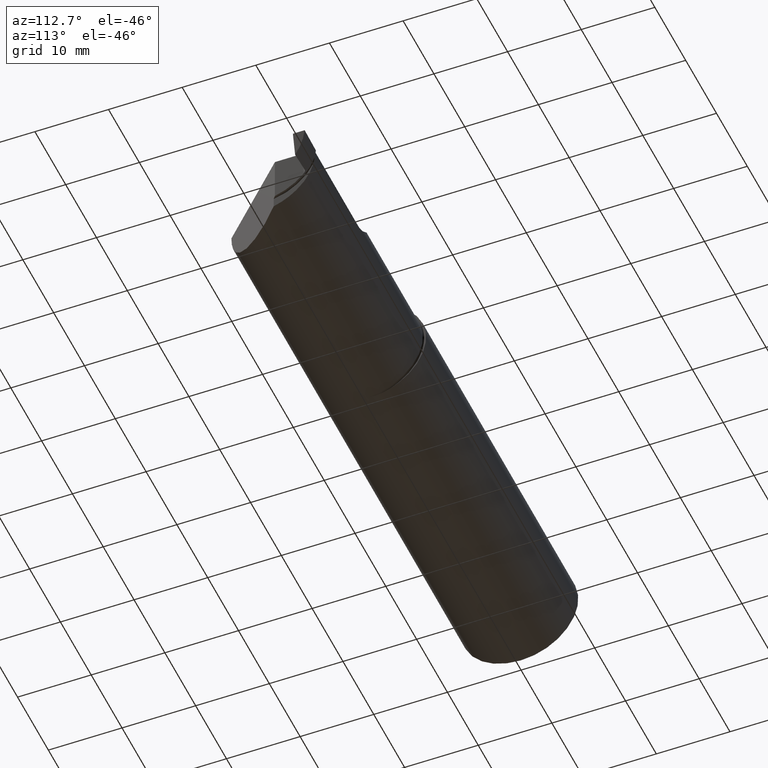
[diagram: clean part render]
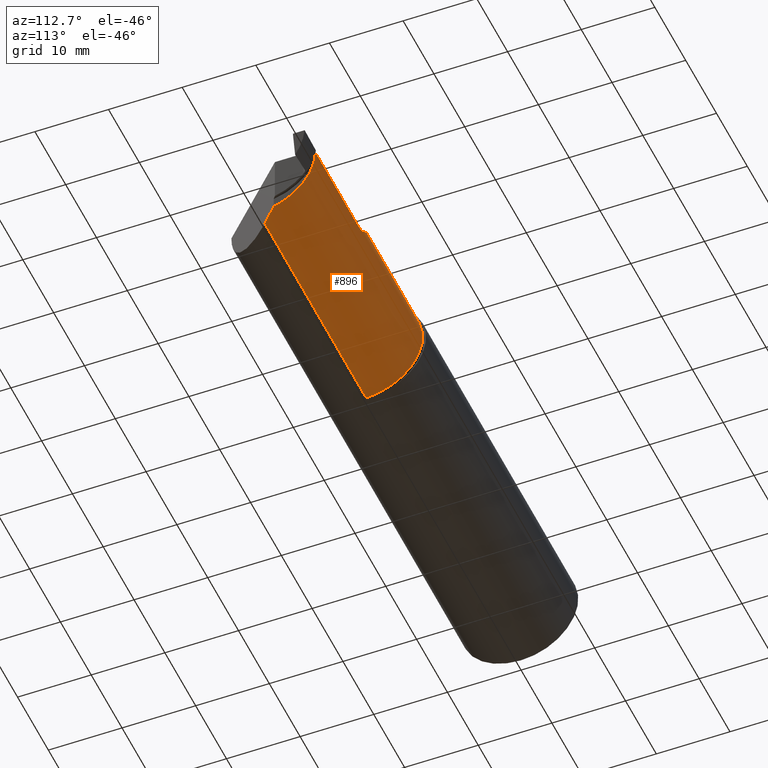
[diagram: same view with one face highlighted and labeled with its STEP entity id]
A machine part, auxiliary view. The second image highlights one B-rep face of the part: STEP entity #896.
In plain terms, the highlighted cylindrical surface (partial cylindrical patch) has radius 7.9375 mm, axis along (-1, -0, -0).
Its self-contained STEP definition (entity closure, byte-faithful):
#14 = CARTESIAN_POINT ( 'NONE',  ( 3.341999999999999638, 0.2973492383597809430, 0.000000000000000000 ) ) ;
#23 = ORIENTED_EDGE ( 'NONE', *, *, #881, .T. ) ;
#28 = CARTESIAN_POINT ( 'NONE',  ( 1.960000000000000409, 0.07781981166122950433, 0.2983500000000000041 ) ) ;
#42 =( BOUNDED_CURVE ( )  B_SPLINE_CURVE ( 3, ( #456, #663, #307, #122 ),
 .UNSPECIFIED., .F., .T. ) 
 B_SPLINE_CURVE_WITH_KNOTS ( ( 4, 4 ),
 ( 4.829815950483568265, 5.981106177898001697 ),
 .UNSPECIFIED. ) 
 CURVE ( )  GEOMETRIC_REPRESENTATION_ITEM ( )  RATIONAL_B_SPLINE_CURVE ( ( 1.000000000000000000, 0.8925608616953477625, 0.8925608616953477625, 1.000000000000000000 ) ) 
 REPRESENTATION_ITEM ( '' )  );
#53 = VERTEX_POINT ( 'NONE', #346 ) ;
#56 = DIRECTION ( 'NONE',  ( 0.000000000000000000, 0.000000000000000000, 1.000000000000000000 ) ) ;
#64 = CARTESIAN_POINT ( 'NONE',  ( 3.341999999999999638, 0.1963737778918792642, -0.2300296049984300595 ) ) ;
#79 = CARTESIAN_POINT ( 'NONE',  ( 2.711388347648312713, 0.2951971671624064042, 0.03661165235168226811 ) ) ;
#81 = ORIENTED_EDGE ( 'NONE', *, *, #852, .T. ) ;
#98 = DIRECTION ( 'NONE',  ( 0.000000000000000000, 0.000000000000000000, 1.000000000000000000 ) ) ;
#103 = VECTOR ( 'NONE', #774, 39.37007874015748143 ) ;
#107 = CARTESIAN_POINT ( 'NONE',  ( 3.342000000000061810, 0.2930161518995065828, -0.05185945814795141218 ) ) ;
#110 = VERTEX_POINT ( 'NONE', #64 ) ;
#111 = CARTESIAN_POINT ( 'NONE',  ( 3.340375989365386378, 0.2894132848368675681, -0.07007695630439270129 ) ) ;
#122 = CARTESIAN_POINT ( 'NONE',  ( 2.449649999999997885, 0.07781981166122939331, 0.2983500000000000041 ) ) ;
#126 = CARTESIAN_POINT ( 'NONE',  ( 2.767240569818964158, 0.2973273312837141913, 0.004032474903713762111 ) ) ;
#127 = EDGE_CURVE ( 'NONE', #396, #192, #427, .T. ) ;
#128 = CARTESIAN_POINT ( 'NONE',  ( 1.968000000000000416, -0.004482219491799574983, -0.3123178384409500685 ) ) ;
#133 = CARTESIAN_POINT ( 'NONE',  ( 2.799776695296631868, 0.2973492383597807764, -1.707404996040164512E-17 ) ) ;
#144 = CARTESIAN_POINT ( 'NONE',  ( 2.723503842258455432, 0.2963290950768751042, 0.02563397962624387738 ) ) ;
#145 = CARTESIAN_POINT ( 'NONE',  ( 1.968000000000000416, -0.01515076164021939703, 0.000000000000000000 ) ) ;
#175 = ORIENTED_EDGE ( 'NONE', *, *, #675, .T. ) ;
#180 = B_SPLINE_CURVE_WITH_KNOTS ( 'NONE', 3,
 ( #890, #205, #144, #552, #837, #624, #126, #761, #264, #398 ),
 .UNSPECIFIED., .F., .F.,
 ( 4, 2, 2, 2, 4 ),
 ( 0.000000000000000000, 0.0006199328346996068641, 0.001239865669399213728, 0.001859798504098820592, 0.002479731338798427456 ),
 .UNSPECIFIED. ) ;
#189 = ORIENTED_EDGE ( 'NONE', *, *, #527, .T. ) ;
#192 = VERTEX_POINT ( 'NONE', #14 ) ;
#203 = VERTEX_POINT ( 'NONE', #237 ) ;
#205 = CARTESIAN_POINT ( 'NONE',  ( 2.717205560604044390, 0.2958834220351636568, 0.03079443939595079630 ) ) ;
#209 = CARTESIAN_POINT ( 'NONE',  ( 3.341999999999999638, 0.1963737778918792642, -0.2300296049984300595 ) ) ;
#212 = DIRECTION ( 'NONE',  ( -1.000000000000000000, -0.000000000000000000, -0.000000000000000000 ) ) ;
#234 = VERTEX_POINT ( 'NONE', #717 ) ;
#237 = CARTESIAN_POINT ( 'NONE',  ( 3.262867780507748616, -0.004482219492250623903, -0.3123178384409545649 ) ) ;
#257 = CARTESIAN_POINT ( 'NONE',  ( 3.341309334049585189, 0.2924058107633026315, -0.05548631717975908983 ) ) ;
#264 = CARTESIAN_POINT ( 'NONE',  ( 2.791523900243894740, 0.2973492383597807209, -2.254308158834279832E-17 ) ) ;
#272 = CARTESIAN_POINT ( 'NONE',  ( 3.341999999999999638, 0.07464999999999993863, -0.2993193498737371505 ) ) ;
#279 =( BOUNDED_CURVE ( )  B_SPLINE_CURVE ( 3, ( #272, #478, #833, #325 ),
 .UNSPECIFIED., .F., .T. ) 
 B_SPLINE_CURVE_WITH_KNOTS ( ( 4, 4 ),
 ( 4.420916993469798939, 4.678243010498002619 ),
 .UNSPECIFIED. ) 
 CURVE ( )  GEOMETRIC_REPRESENTATION_ITEM ( )  RATIONAL_B_SPLINE_CURVE ( ( 1.000000000000000000, 0.9944895514512559487, 0.9944895514512559487, 1.000000000000000000 ) ) 
 REPRESENTATION_ITEM ( '' )  );
#280 = CYLINDRICAL_SURFACE ( 'NONE', #523, 0.3125000000000001665 ) ;
#283 = EDGE_CURVE ( 'NONE', #110, #517, #300, .T. ) ;
#293 = VERTEX_POINT ( 'NONE', #128 ) ;
#300 = CIRCLE ( 'NONE', #668, 0.3125000000000003331 ) ;
#307 = CARTESIAN_POINT ( 'NONE',  ( 2.487452056093010455, 0.1991296308314491337, 0.2605479439069870451 ) ) ;
#310 = ORIENTED_EDGE ( 'NONE', *, *, #392, .F. ) ;
#313 = VECTOR ( 'NONE', #519, 39.37007874015748143 ) ;
#316 = CARTESIAN_POINT ( 'NONE',  ( 3.340473152000548840, 0.2902257375342590096, -0.06644796474829747779 ) ) ;
#325 = CARTESIAN_POINT ( 'NONE',  ( 3.262867780507748616, -0.004482219492250623903, -0.3123178384409545649 ) ) ;
#346 = CARTESIAN_POINT ( 'NONE',  ( 2.449649999999997885, 0.07781981166122939331, 0.2983500000000000041 ) ) ;
#350 = ORIENTED_EDGE ( 'NONE', *, *, #865, .T. ) ;
#351 = CARTESIAN_POINT ( 'NONE',  ( 1.960000000000000409, -0.01515076164021939703, 0.000000000000000000 ) ) ;
#392 = EDGE_CURVE ( 'NONE', #399, #293, #506, .T. ) ;
#393 = CARTESIAN_POINT ( 'NONE',  ( 3.340952892490537174, 0.2917235067374475133, -0.05914661169435465882 ) ) ;
#396 = VERTEX_POINT ( 'NONE', #133 ) ;
#398 = CARTESIAN_POINT ( 'NONE',  ( 2.799776695296631868, 0.2973492383597807764, -1.707404996040164512E-17 ) ) ;
#399 = VERTEX_POINT ( 'NONE', #425 ) ;
#400 = DIRECTION ( 'NONE',  ( -1.000000000000000000, -0.000000000000000000, -0.000000000000000000 ) ) ;
#425 = CARTESIAN_POINT ( 'NONE',  ( 1.968000000000000416, 0.07781981166122896310, 0.2983500000000000041 ) ) ;
#427 = LINE ( 'NONE', #702, #687 ) ;
#455 = ORIENTED_EDGE ( 'NONE', *, *, #728, .T. ) ;
#456 = CARTESIAN_POINT ( 'NONE',  ( 2.711388347648312713, 0.2951971671624064042, 0.03661165235168226811 ) ) ;
#460 = VERTEX_POINT ( 'NONE', #79 ) ;
#468 = ORIENTED_EDGE ( 'NONE', *, *, #283, .T. ) ;
#470 = CARTESIAN_POINT ( 'NONE',  ( 3.341999999999999638, -0.01515076164021939703, 0.000000000000000000 ) ) ;
#478 = CARTESIAN_POINT ( 'NONE',  ( 3.316254690375905145, 0.04890469037590606388, -0.3070433690989630704 ) ) ;
#495 = AXIS2_PLACEMENT_3D ( 'NONE', #470, #877, #98 ) ;
#506 = CIRCLE ( 'NONE', #758, 0.3125000000000000000 ) ;
#515 = LINE ( 'NONE', #741, #313 ) ;
#517 = VERTEX_POINT ( 'NONE', #632 ) ;
#519 = DIRECTION ( 'NONE',  ( -1.000000000000000000, -0.000000000000000000, -0.000000000000000000 ) ) ;
#523 = AXIS2_PLACEMENT_3D ( 'NONE', #351, #631, #580 ) ;
#525 = VERTEX_POINT ( 'NONE', #647 ) ;
#527 = EDGE_CURVE ( 'NONE', #399, #53, #568, .T. ) ;
#542 = EDGE_LOOP ( 'NONE', ( #189, #867, #81, #814, #455, #175, #23, #468, #350, #544, #310 ) ) ;
#544 = ORIENTED_EDGE ( 'NONE', *, *, #681, .T. ) ;
#549 = CARTESIAN_POINT ( 'NONE',  ( 3.340647624369299962, 0.2738513258850904797, -0.1342142369981475791 ) ) ;
#552 = CARTESIAN_POINT ( 'NONE',  ( 2.737023584286429223, 0.2969416066437379764, 0.01658781814739456600 ) ) ;
#568 = LINE ( 'NONE', #28, #103 ) ;
#580 = DIRECTION ( 'NONE',  ( 0.000000000000000000, 0.000000000000000000, 1.000000000000000000 ) ) ;
#581 = B_SPLINE_CURVE_WITH_KNOTS ( 'NONE', 3,
 ( #107, #257, #393, #316, #111, #795 ),
 .UNSPECIFIED., .F., .F.,
 ( 4, 2, 4 ),
 ( 1.078908356525690865E-06, 0.0002856024796978789471, 0.0005701260510392322034 ),
 .UNSPECIFIED. ) ;
#588 = DIRECTION ( 'NONE',  ( 1.000000000000000000, 0.000000000000000000, 0.000000000000000000 ) ) ;
#624 = CARTESIAN_POINT ( 'NONE',  ( 2.759453897954011747, 0.2972994535838715535, 0.006399527291019162234 ) ) ;
#631 = DIRECTION ( 'NONE',  ( -1.000000000000000000, -0.000000000000000000, -0.000000000000000000 ) ) ;
#632 = CARTESIAN_POINT ( 'NONE',  ( 3.341999999999999638, 0.07464999999999993863, -0.2993193498737371505 ) ) ;
#637 = FACE_OUTER_BOUND ( 'NONE', #542, .T. ) ;
#647 = CARTESIAN_POINT ( 'NONE',  ( 3.342000000000061810, 0.2930161518995065828, -0.05185945814795141218 ) ) ;
#650 = EDGE_CURVE ( 'NONE', #460, #53, #42, .T. ) ;
#663 = CARTESIAN_POINT ( 'NONE',  ( 2.585200142108180721, 0.2803107822912631053, 0.1627998578918155581 ) ) ;
#668 = AXIS2_PLACEMENT_3D ( 'NONE', #807, #400, #56 ) ;
#675 = EDGE_CURVE ( 'NONE', #525, #234, #581, .T. ) ;
#681 = EDGE_CURVE ( 'NONE', #203, #293, #515, .T. ) ;
#684 = DIRECTION ( 'NONE',  ( 0.000000000000000000, 0.000000000000000000, 1.000000000000000000 ) ) ;
#687 = VECTOR ( 'NONE', #588, 39.37007874015748143 ) ;
#702 = CARTESIAN_POINT ( 'NONE',  ( 1.960000000000000409, 0.2973492383597806654, 0.000000000000000000 ) ) ;
#717 = CARTESIAN_POINT ( 'NONE',  ( 3.340391272324914951, 0.2885377246718806576, -0.07368550251891815839 ) ) ;
#728 = EDGE_CURVE ( 'NONE', #192, #525, #784, .T. ) ;
#741 = CARTESIAN_POINT ( 'NONE',  ( 2.654999999999999805, -0.004482219491794909444, -0.3123178384409500685 ) ) ;
#758 = AXIS2_PLACEMENT_3D ( 'NONE', #145, #212, #684 ) ;
#761 = CARTESIAN_POINT ( 'NONE',  ( 2.783262096974776334, 0.2973522559233172102, 0.0008266951744985345579 ) ) ;
#774 = DIRECTION ( 'NONE',  ( 1.000000000000000000, 0.000000000000000000, 0.000000000000000000 ) ) ;
#778 =( BOUNDED_CURVE ( )  B_SPLINE_CURVE ( 3, ( #899, #549, #828, #209 ),
 .UNSPECIFIED., .F., .F. ) 
 B_SPLINE_CURVE_WITH_KNOTS ( ( 4, 4 ),
 ( 0.2380351218736458940, 0.8272825919576669573 ),
 .UNSPECIFIED. ) 
 CURVE ( )  GEOMETRIC_REPRESENTATION_ITEM ( )  RATIONAL_B_SPLINE_CURVE ( ( 1.000000000000000000, 0.9712743132040945193, 0.9712743132040945193, 1.000000000000000000 ) ) 
 REPRESENTATION_ITEM ( '' )  );
#784 = CIRCLE ( 'NONE', #495, 0.3125000000000003331 ) ;
#795 = CARTESIAN_POINT ( 'NONE',  ( 3.340391272324914951, 0.2885377246718806576, -0.07368550251891815839 ) ) ;
#807 = CARTESIAN_POINT ( 'NONE',  ( 3.341999999999999638, -0.01515076164021939703, 0.000000000000000000 ) ) ;
#814 = ORIENTED_EDGE ( 'NONE', *, *, #127, .T. ) ;
#828 = CARTESIAN_POINT ( 'NONE',  ( 3.341199726438789597, 0.2422214195077782017, -0.1878702434610231009 ) ) ;
#833 = CARTESIAN_POINT ( 'NONE',  ( 3.289731127147991430, 0.02238112714799254943, -0.3114002067510898142 ) ) ;
#837 = CARTESIAN_POINT ( 'NONE',  ( 2.744331949518403757, 0.2971080177065931194, 0.01267066154421023563 ) ) ;
#852 = EDGE_CURVE ( 'NONE', #460, #396, #180, .T. ) ;
#865 = EDGE_CURVE ( 'NONE', #517, #203, #279, .T. ) ;
#867 = ORIENTED_EDGE ( 'NONE', *, *, #650, .F. ) ;
#877 = DIRECTION ( 'NONE',  ( -1.000000000000000000, -0.000000000000000000, -0.000000000000000000 ) ) ;
#881 = EDGE_CURVE ( 'NONE', #234, #110, #778, .T. ) ;
#890 = CARTESIAN_POINT ( 'NONE',  ( 2.711388347648312713, 0.2951971671624064042, 0.03661165235168226811 ) ) ;
#896 = ADVANCED_FACE ( 'NONE', ( #637 ), #280, .T. ) ;
#899 = CARTESIAN_POINT ( 'NONE',  ( 3.340391272324914951, 0.2885377246718806576, -0.07368550251891815839 ) ) ;